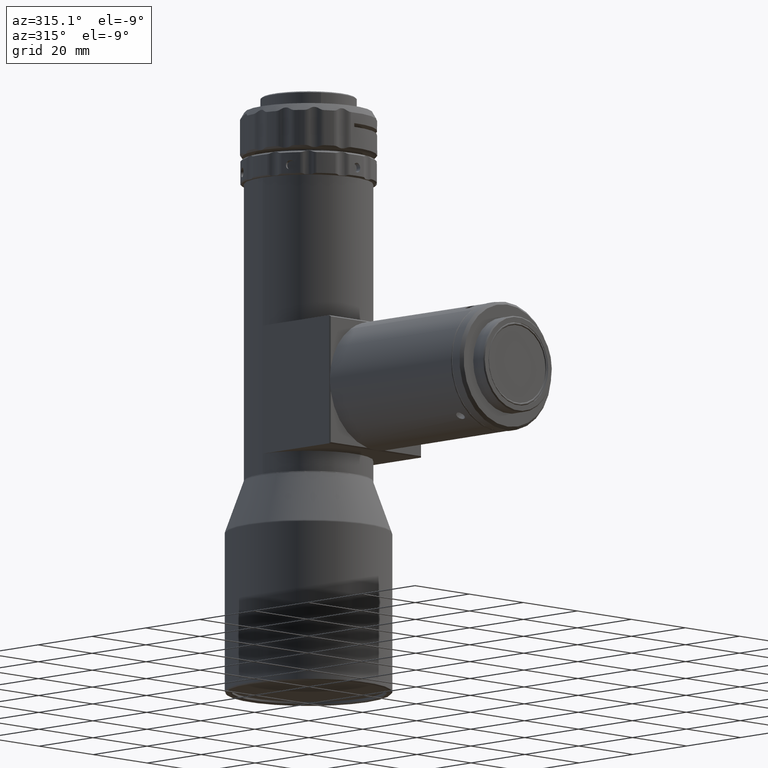
[diagram: clean part render]
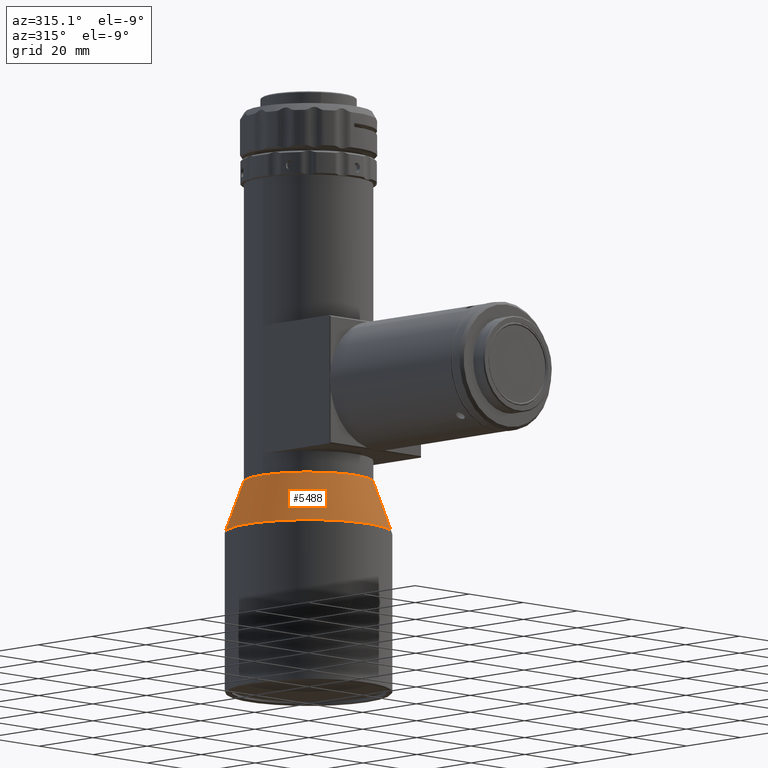
[diagram: same view with one face highlighted and labeled with its STEP entity id]
A machine part, auxiliary view. The second image highlights one B-rep face of the part: STEP entity #5488.
In plain terms, the highlighted conical surface has half-angle 20 deg.
Its self-contained STEP definition (entity closure, byte-faithful):
#157 = EDGE_CURVE ( 'NONE', #9330, #4758, #2768, .T. ) ;
#203 = AXIS2_PLACEMENT_3D ( 'NONE', #4381, #9263, #1914 ) ;
#439 = VECTOR ( 'NONE', #7574, 1000.000000000000200 ) ;
#686 = LINE ( 'NONE', #2575, #439 ) ;
#813 = CARTESIAN_POINT ( 'NONE',  ( -12.80417548235963400, 11.27418192554146100, 0.1656153400936399300 ) ) ;
#867 = VECTOR ( 'NONE', #10146, 1000.000000000000100 ) ;
#1368 = CARTESIAN_POINT ( 'NONE',  ( 1.119958005671930900E-014, -5.302770734892711100E-014, 0.1656153400936416500 ) ) ;
#1914 = DIRECTION ( 'NONE',  ( 0.7505243134106701600, -0.6608428368223735500, 1.581356225869190300E-016 ) ) ;
#1954 = DIRECTION ( 'NONE',  ( 2.463942195970201000E-016, 2.161748815651538700E-017, -1.000000000000000000 ) ) ;
#2281 = ORIENTED_EDGE ( 'NONE', *, *, #157, .T. ) ;
#2575 = CARTESIAN_POINT ( 'NONE',  ( 16.51153489503475700, -14.53854241009226600, -13.40607859456250100 ) ) ;
#2722 = DIRECTION ( 'NONE',  ( -0.7505243134106700500, 0.6608428368223735500, -1.577021341797097600E-016 ) ) ;
#2768 = CIRCLE ( 'NONE', #5882, 17.06030737921409100 ) ;
#2871 = CARTESIAN_POINT ( 'NONE',  ( -16.51153489503472500, 14.53854241009216300, -13.40607859456250800 ) ) ;
#3085 = ORIENTED_EDGE ( 'NONE', *, *, #8106, .T. ) ;
#3393 = FACE_OUTER_BOUND ( 'NONE', #3864, .T. ) ;
#3632 = EDGE_CURVE ( 'NONE', #4758, #9852, #9934, .T. ) ;
#3864 = EDGE_LOOP ( 'NONE', ( #7771, #2281, #6255, #3085 ) ) ;
#4022 = CONICAL_SURFACE ( 'NONE', #8608, 21.99999999999999600, 0.3490658503988599600 ) ;
#4381 = CARTESIAN_POINT ( 'NONE',  ( 1.450274115486290000E-014, -5.273790328601131900E-014, -13.24038543194532700 ) ) ;
#4519 = DIRECTION ( 'NONE',  ( -0.7505243134106701600, 0.6608428368223735500, -1.699993292578253900E-016 ) ) ;
#4758 = VERTEX_POINT ( 'NONE', #813 ) ;
#5488 = ADVANCED_FACE ( 'NONE', ( #3393 ), #4022, .T. ) ;
#5882 = AXIS2_PLACEMENT_3D ( 'NONE', #1368, #9533, #4519 ) ;
#6255 = ORIENTED_EDGE ( 'NONE', *, *, #3632, .T. ) ;
#6905 = CARTESIAN_POINT ( 'NONE',  ( 1.454356699235852100E-014, -5.273432141603082500E-014, -13.40607859456250500 ) ) ;
#6976 = CARTESIAN_POINT ( 'NONE',  ( 16.46627274065650700, -14.49868871053110900, -13.24038543194532400 ) ) ;
#7009 = EDGE_CURVE ( 'NONE', #9330, #9991, #686, .T. ) ;
#7022 = CARTESIAN_POINT ( 'NONE',  ( 12.80417548235965700, -11.27418192554156400, 0.1656153400936433700 ) ) ;
#7574 = DIRECTION ( 'NONE',  ( 0.2566944332421126100, -0.2260215617657259900, -0.9396926207859103200 ) ) ;
#7771 = ORIENTED_EDGE ( 'NONE', *, *, #7009, .F. ) ;
#8106 = EDGE_CURVE ( 'NONE', #9852, #9991, #9861, .T. ) ;
#8608 = AXIS2_PLACEMENT_3D ( 'NONE', #6905, #1954, #2722 ) ;
#9263 = DIRECTION ( 'NONE',  ( -2.463942195970201000E-016, -2.161748815651538700E-017, 1.000000000000000000 ) ) ;
#9330 = VERTEX_POINT ( 'NONE', #7022 ) ;
#9533 = DIRECTION ( 'NONE',  ( 2.463942195970201000E-016, 2.161748815651538700E-017, -1.000000000000000000 ) ) ;
#9852 = VERTEX_POINT ( 'NONE', #9989 ) ;
#9861 = CIRCLE ( 'NONE', #203, 21.93969262078591600 ) ;
#9934 = LINE ( 'NONE', #2871, #867 ) ;
#9989 = CARTESIAN_POINT ( 'NONE',  ( -16.46627274065647800, 14.49868871053100800, -13.24038543194533100 ) ) ;
#9991 = VERTEX_POINT ( 'NONE', #6976 ) ;
#10146 = DIRECTION ( 'NONE',  ( -0.2566944332421120500, 0.2260215617657260500, -0.9396926207859104300 ) ) ;